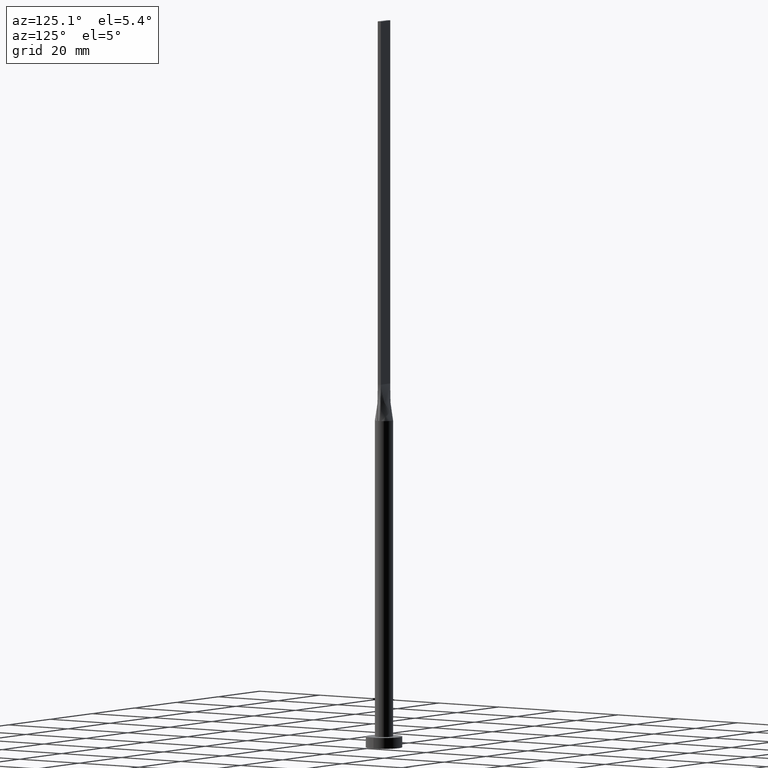
[diagram: clean part render]
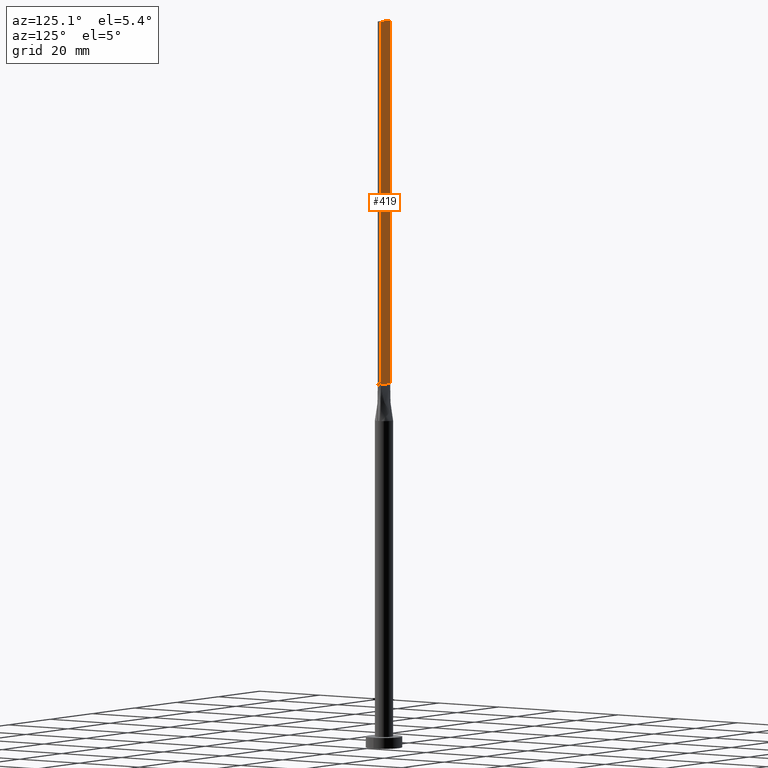
[diagram: same view with one face highlighted and labeled with its STEP entity id]
A machine part, auxiliary view. The second image highlights one B-rep face of the part: STEP entity #419.
In plain terms, the highlighted planar face has unit normal (0, -1, 0).
Its self-contained STEP definition (entity closure, byte-faithful):
#4 = VERTEX_POINT ( 'NONE', #136 ) ;
#22 = EDGE_CURVE ( 'NONE', #157, #4, #356, .T. ) ;
#59 = CARTESIAN_POINT ( 'NONE',  ( 2.249999999999999556, 0.5000000000000002220, 200.0000000000000000 ) ) ;
#62 = CARTESIAN_POINT ( 'NONE',  ( 2.249999999999999556, 0.5000000000000002220, 99.99999999999998579 ) ) ;
#77 = EDGE_CURVE ( 'NONE', #157, #518, #548, .T. ) ;
#87 = ORIENTED_EDGE ( 'NONE', *, *, #77, .T. ) ;
#109 = VECTOR ( 'NONE', #182, 1000.000000000000000 ) ;
#119 = ORIENTED_EDGE ( 'NONE', *, *, #319, .F. ) ;
#136 = CARTESIAN_POINT ( 'NONE',  ( -2.249999999999999556, 0.5000000000000002220, 200.0000000000000000 ) ) ;
#152 = EDGE_LOOP ( 'NONE', ( #423, #119, #303, #87 ) ) ;
#157 = VERTEX_POINT ( 'NONE', #405 ) ;
#166 = VERTEX_POINT ( 'NONE', #274 ) ;
#178 = DIRECTION ( 'NONE',  ( -1.000000000000000000, 0.000000000000000000, 0.000000000000000000 ) ) ;
#179 = CARTESIAN_POINT ( 'NONE',  ( -2.249999999999999556, 0.5000000000000002220, 99.99999999999998579 ) ) ;
#181 = EDGE_CURVE ( 'NONE', #518, #166, #575, .T. ) ;
#182 = DIRECTION ( 'NONE',  ( -0.000000000000000000, -0.000000000000000000, -1.000000000000000000 ) ) ;
#194 = DIRECTION ( 'NONE',  ( 0.000000000000000000, -1.000000000000000000, 0.000000000000000000 ) ) ;
#202 = DIRECTION ( 'NONE',  ( -0.000000000000000000, -0.000000000000000000, -1.000000000000000000 ) ) ;
#215 = VECTOR ( 'NONE', #526, 1000.000000000000000 ) ;
#231 = VECTOR ( 'NONE', #202, 1000.000000000000000 ) ;
#274 = CARTESIAN_POINT ( 'NONE',  ( -2.249999999999999556, 0.5000000000000002220, 99.99999999999998579 ) ) ;
#286 = PLANE ( 'NONE',  #362 ) ;
#289 = CARTESIAN_POINT ( 'NONE',  ( -2.249999999999999556, 0.5000000000000002220, 200.0000000000000000 ) ) ;
#303 = ORIENTED_EDGE ( 'NONE', *, *, #22, .F. ) ;
#319 = EDGE_CURVE ( 'NONE', #4, #166, #499, .T. ) ;
#344 = CARTESIAN_POINT ( 'NONE',  ( 2.249999999999999556, 0.5000000000000002220, 200.0000000000000000 ) ) ;
#356 = LINE ( 'NONE', #474, #429 ) ;
#362 = AXIS2_PLACEMENT_3D ( 'NONE', #59, #194, #449 ) ;
#405 = CARTESIAN_POINT ( 'NONE',  ( 2.249999999999999556, 0.5000000000000002220, 200.0000000000000000 ) ) ;
#419 = ADVANCED_FACE ( 'NONE', ( #495 ), #286, .F. ) ;
#423 = ORIENTED_EDGE ( 'NONE', *, *, #181, .T. ) ;
#429 = VECTOR ( 'NONE', #178, 1000.000000000000000 ) ;
#449 = DIRECTION ( 'NONE',  ( 0.000000000000000000, -0.000000000000000000, -1.000000000000000000 ) ) ;
#474 = CARTESIAN_POINT ( 'NONE',  ( 2.249999999999999556, 0.5000000000000002220, 200.0000000000000000 ) ) ;
#495 = FACE_OUTER_BOUND ( 'NONE', #152, .T. ) ;
#499 = LINE ( 'NONE', #289, #231 ) ;
#518 = VERTEX_POINT ( 'NONE', #62 ) ;
#526 = DIRECTION ( 'NONE',  ( -1.000000000000000000, -0.000000000000000000, -0.000000000000000000 ) ) ;
#548 = LINE ( 'NONE', #344, #109 ) ;
#575 = LINE ( 'NONE', #179, #215 ) ;